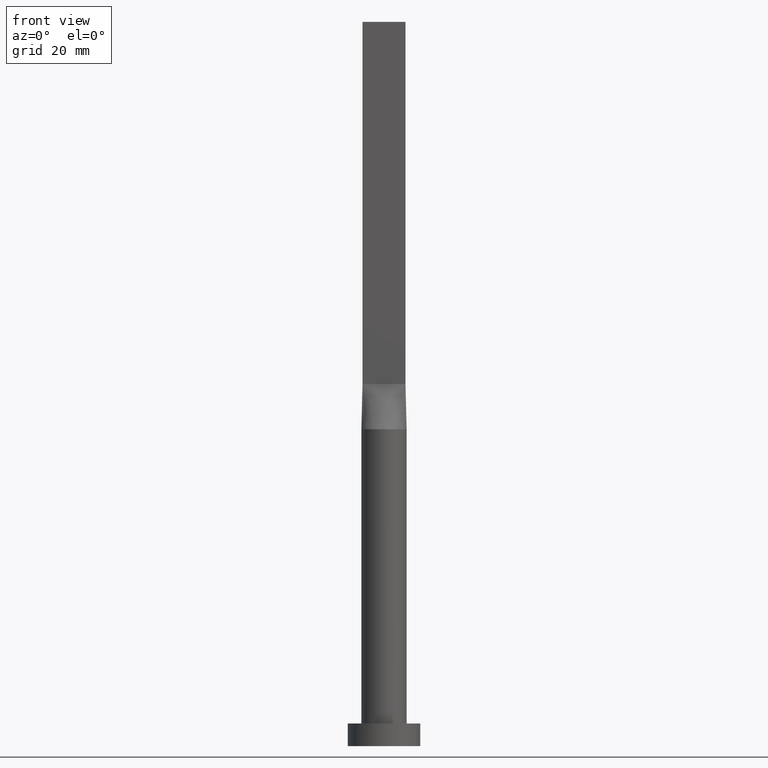
[diagram: clean part render]
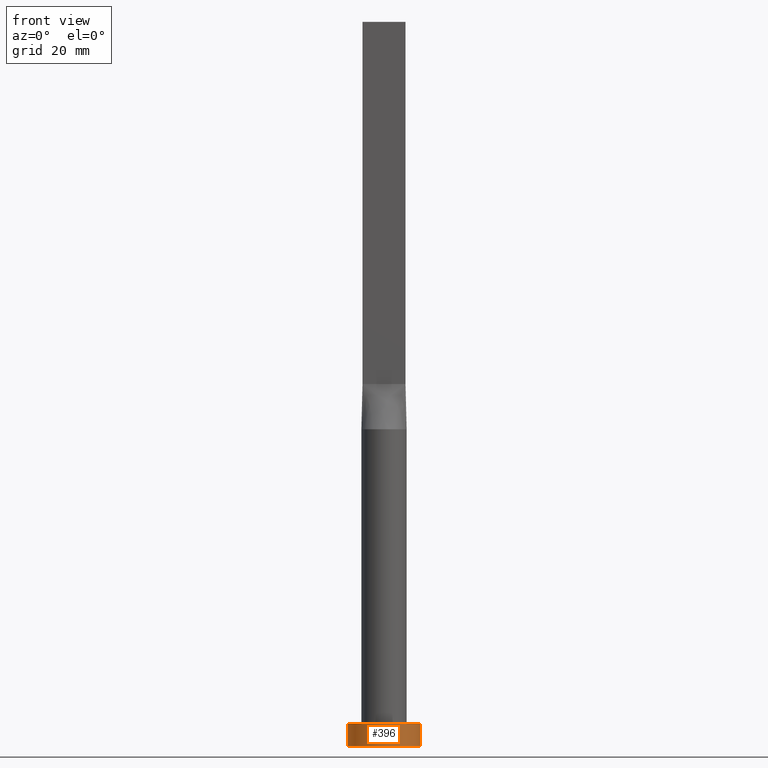
[diagram: same view with one face highlighted and labeled with its STEP entity id]
A machine part, front view. The second image highlights one B-rep face of the part: STEP entity #396.
In plain terms, the highlighted cylindrical surface (edge-blend (fillet) strip) has radius 8 mm, axis along (-0, -0, -1).
Its self-contained STEP definition (entity closure, byte-faithful):
#8 = DIRECTION ( 'NONE',  ( -0.000000000000000000, -0.000000000000000000, -1.000000000000000000 ) ) ;
#26 = ORIENTED_EDGE ( 'NONE', *, *, #213, .T. ) ;
#46 = FACE_OUTER_BOUND ( 'NONE', #237, .T. ) ;
#77 = AXIS2_PLACEMENT_3D ( 'NONE', #126, #360, #310 ) ;
#104 = DIRECTION ( 'NONE',  ( -1.000000000000000000, 0.000000000000000000, 0.000000000000000000 ) ) ;
#109 = DIRECTION ( 'NONE',  ( -0.000000000000000000, -0.000000000000000000, -1.000000000000000000 ) ) ;
#116 = CARTESIAN_POINT ( 'NONE',  ( -8.000000000000000000, 0.000000000000000000, 0.000000000000000000 ) ) ;
#126 = CARTESIAN_POINT ( 'NONE',  ( 0.000000000000000000, 0.000000000000000000, 0.000000000000000000 ) ) ;
#160 = CARTESIAN_POINT ( 'NONE',  ( 8.000000000000000000, 9.797174393178825657E-16, 5.000000000000000000 ) ) ;
#164 = DIRECTION ( 'NONE',  ( 0.000000000000000000, 0.000000000000000000, 1.000000000000000000 ) ) ;
#173 = EDGE_CURVE ( 'NONE', #430, #604, #244, .T. ) ;
#180 = CIRCLE ( 'NONE', #77, 8.000000000000000000 ) ;
#204 = CARTESIAN_POINT ( 'NONE',  ( 8.000000000000000000, 9.797174393178825657E-16, 0.000000000000000000 ) ) ;
#213 = EDGE_CURVE ( 'NONE', #604, #425, #180, .T. ) ;
#237 = EDGE_LOOP ( 'NONE', ( #513, #281, #407, #26 ) ) ;
#244 = LINE ( 'NONE', #485, #278 ) ;
#278 = VECTOR ( 'NONE', #450, 1000.000000000000000 ) ;
#281 = ORIENTED_EDGE ( 'NONE', *, *, #293, .F. ) ;
#288 = AXIS2_PLACEMENT_3D ( 'NONE', #452, #164, #356 ) ;
#293 = EDGE_CURVE ( 'NONE', #430, #613, #331, .T. ) ;
#310 = DIRECTION ( 'NONE',  ( 1.000000000000000000, 0.000000000000000000, 0.000000000000000000 ) ) ;
#331 = CIRCLE ( 'NONE', #288, 8.000000000000000000 ) ;
#341 = VECTOR ( 'NONE', #109, 1000.000000000000000 ) ;
#356 = DIRECTION ( 'NONE',  ( 1.000000000000000000, 0.000000000000000000, 0.000000000000000000 ) ) ;
#360 = DIRECTION ( 'NONE',  ( 0.000000000000000000, 0.000000000000000000, 1.000000000000000000 ) ) ;
#396 = ADVANCED_FACE ( 'NONE', ( #46 ), #436, .T. ) ;
#407 = ORIENTED_EDGE ( 'NONE', *, *, #173, .T. ) ;
#412 = LINE ( 'NONE', #160, #341 ) ;
#425 = VERTEX_POINT ( 'NONE', #204 ) ;
#430 = VERTEX_POINT ( 'NONE', #581 ) ;
#433 = CARTESIAN_POINT ( 'NONE',  ( 0.000000000000000000, 0.000000000000000000, 5.000000000000000000 ) ) ;
#436 = CYLINDRICAL_SURFACE ( 'NONE', #535, 8.000000000000000000 ) ;
#450 = DIRECTION ( 'NONE',  ( -0.000000000000000000, -0.000000000000000000, -1.000000000000000000 ) ) ;
#452 = CARTESIAN_POINT ( 'NONE',  ( 0.000000000000000000, 0.000000000000000000, 5.000000000000000000 ) ) ;
#485 = CARTESIAN_POINT ( 'NONE',  ( -8.000000000000000000, 0.000000000000000000, 5.000000000000000000 ) ) ;
#513 = ORIENTED_EDGE ( 'NONE', *, *, #551, .F. ) ;
#535 = AXIS2_PLACEMENT_3D ( 'NONE', #433, #8, #104 ) ;
#551 = EDGE_CURVE ( 'NONE', #613, #425, #412, .T. ) ;
#581 = CARTESIAN_POINT ( 'NONE',  ( -8.000000000000000000, 0.000000000000000000, 5.000000000000000000 ) ) ;
#586 = CARTESIAN_POINT ( 'NONE',  ( 8.000000000000000000, 9.797174393178825657E-16, 5.000000000000000000 ) ) ;
#604 = VERTEX_POINT ( 'NONE', #116 ) ;
#613 = VERTEX_POINT ( 'NONE', #586 ) ;